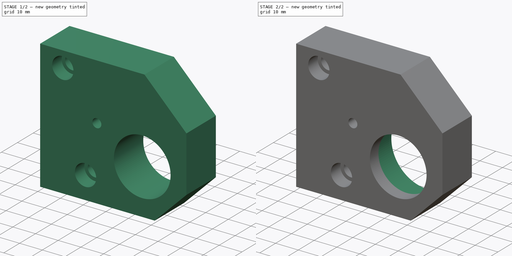
[diagram: build sequence overview — one tinted view per stage of 2, left to right]
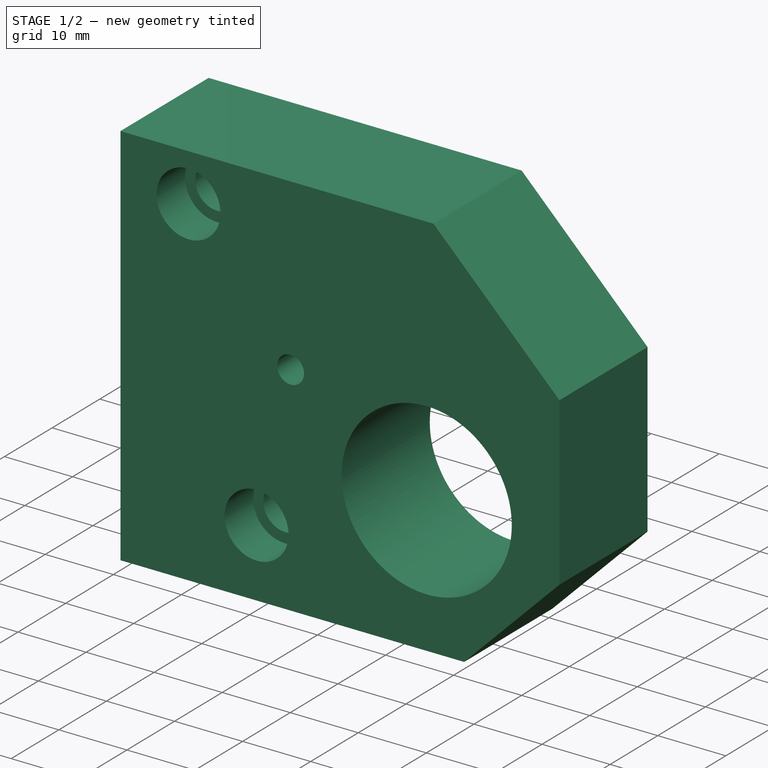
[diagram: stage 1 of 2 — iso view after this stage's code; geometry added in this stage tinted green]
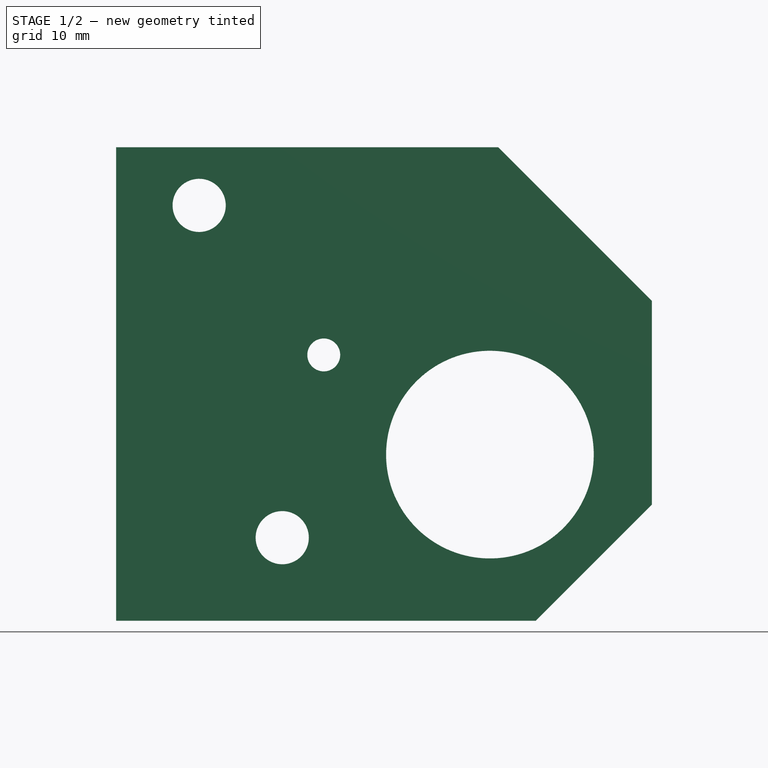
[diagram: stage 1 of 2 — front view after this stage's code; geometry added in this stage tinted green]
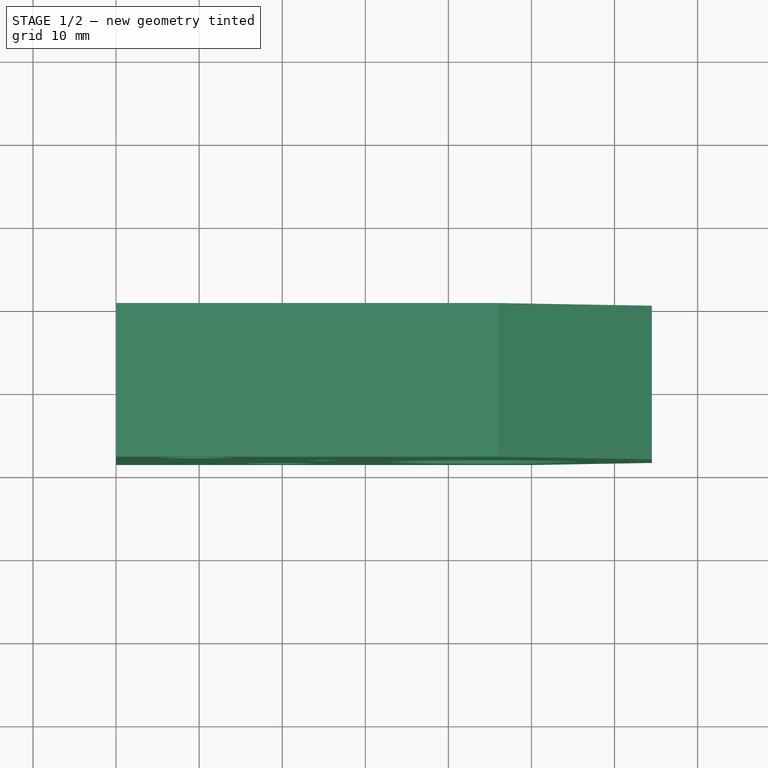
[diagram: stage 1 of 2 — top view after this stage's code; geometry added in this stage tinted green]
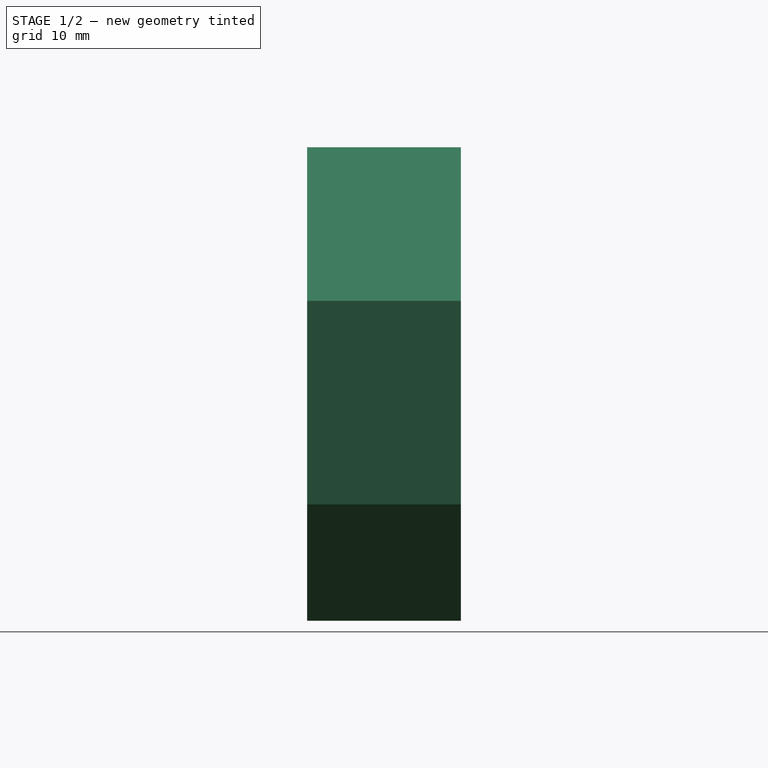
[diagram: stage 1 of 2 — right view after this stage's code; geometry added in this stage tinted green]
FCSTD DOCUMENT  (FreeCAD 0.16R5667 (Git))
Label: Worm-support-32
License: CreativeCommons Attribution-ShareAlike
LicenseURL: http://creativecommons.org/licenses/by-sa/4.0/
objects: Sketcher::SketchObject×4, PartDesign::Pocket×3, PartDesign::Pad×1
note: 12 computed .brp shape members not serialized (recipe doc carries the construction recipe); baked Part::Feature solids carry a one-line shape summary decoded from their .brp

FEATURE [Sketcher::SketchObject] Sketch
  Placement = pos=(0,0,0) rot=(-1,0,0;4.71239rad)
  sketch-geometry (10):
    g0: LineSegment StartX=0 StartY=0 StartZ=0 EndX=0 EndY=-57 EndZ=0
    g1: LineSegment StartX=0 StartY=-57 StartZ=0 EndX=50.5 EndY=-57 EndZ=0
    g2: LineSegment StartX=50.5 StartY=-57 StartZ=0 EndX=64.5 EndY=-43 EndZ=0
    g3: LineSegment StartX=64.5 StartY=-43 StartZ=0 EndX=64.5 EndY=-18.5 EndZ=0
    g4: LineSegment StartX=64.5 StartY=-18.5 StartZ=0 EndX=46 EndY=0 EndZ=0
    g5: LineSegment StartX=46 StartY=0 StartZ=0 EndX=0 EndY=0 EndZ=0
    g6: Circle CenterX=10 CenterY=-7 CenterZ=0 NormalX=0 NormalY=0 NormalZ=1 Radius=3.2
    g7: Circle CenterX=20 CenterY=-47 CenterZ=0 NormalX=0 NormalY=0 NormalZ=1 Radius=3.2
    g8: Circle CenterX=25 CenterY=-25 CenterZ=0 NormalX=0 NormalY=0 NormalZ=1 Radius=1.98
    g9: Circle CenterX=45 CenterY=-37 CenterZ=0 NormalX=0 NormalY=0 NormalZ=1 Radius=12.5
  constraints (29):
    c: Coincident(g0,g1)
    c: Coincident(g1,g2)
    c: Coincident(g2,g3)
    c: Coincident(g3,g4)
    c: Coincident(g4,g5)
    c: Coincident(g0,g5)
    c: Vertical(g0)
    c: Vertical(g3)
    c: Horizontal(g5)
    c: Horizontal(g1)
    c: Coincident(g0,g-1)
    c: DistanceY(g4,g1) = -57
    c: DistanceX(g-1,g3) = 64.5
    c: Angle(g4,g3) = 2.35619
    c: Angle(g3,g2) = 2.35619
    c: DistanceX(g-1,g4) = 46
    c: DistanceX(g1) = 50.5
    c: Equal(g7,g6)
    c: Radius(g7) = 3.2
    c: DistanceY(g-1,g6) = -7
    c: DistanceY(g-1,g7) = -47
    c: DistanceX(g-1,g7) = 20
    c: DistanceX(g-1,g6) = 10
    c: DistanceX(g-1,g8) = 25
    c: Radius(g8) = 1.98
    c: DistanceY(g-1,g8) = -25
    c: Radius(g9) = 12.5
    c: DistanceY(g-1,g9) = -37
    c: DistanceX(g-1,g9) = 45
FEATURE [PartDesign::Pad] Pad
  Length = 18.5
  Length2 = 100
  Placement = pos=(0,0,0) rot=(-1,0,0;4.71239rad)
  Sketch = -> Sketch
  Type = 0
FEATURE [Sketcher::SketchObject] Sketch001
  Placement = pos=(0,-18.5,0) rot=(1,0,0;1.5708rad)
  Support = -> Pad [Face12]
  sketch-geometry (2):
    g0: Circle CenterX=10 CenterY=-7 CenterZ=0 NormalX=0 NormalY=0 NormalZ=1 Radius=4.7
    g1: Circle CenterX=20 CenterY=-47 CenterZ=0 NormalX=0 NormalY=0 NormalZ=1 Radius=4.7
  constraints (6):
    c: Equal(g1,g0)
    c: DistanceY(g-1,g0) = -7
    c: DistanceY(g-1,g1) = -47
    c: DistanceX(g-1,g0) = 10
    c: DistanceX(g-1,g1) = 20
    c: Radius(g1) = 4.7
FEATURE [PartDesign::Pocket] Pocket
  Length = 6
  Placement = pos=(0,0,0) rot=(-1,0,0;4.71239rad)
  Sketch = -> Sketch001
  Type = 0
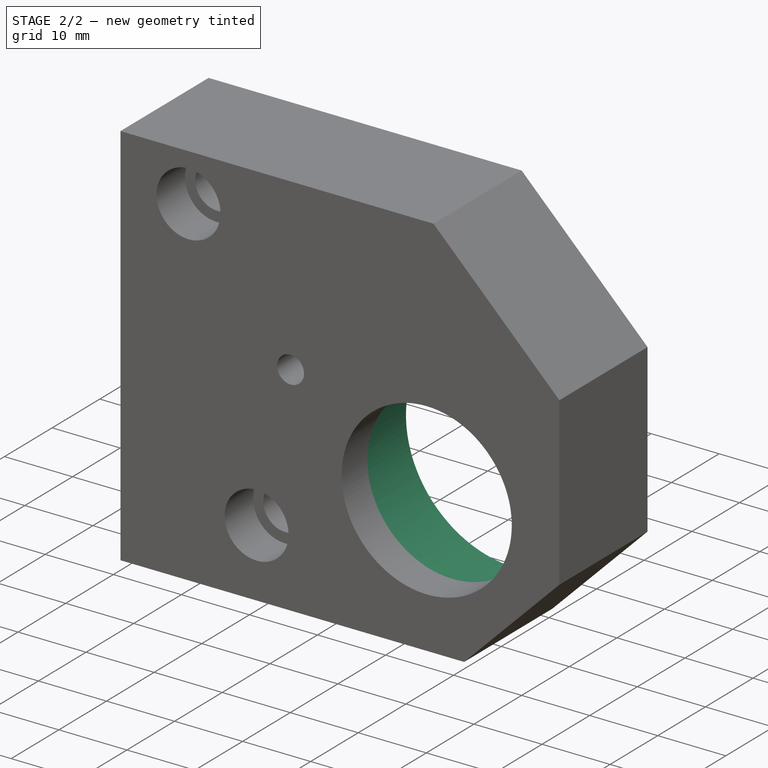
[diagram: stage 2 of 2 — iso view after this stage's code; geometry added in this stage tinted green]
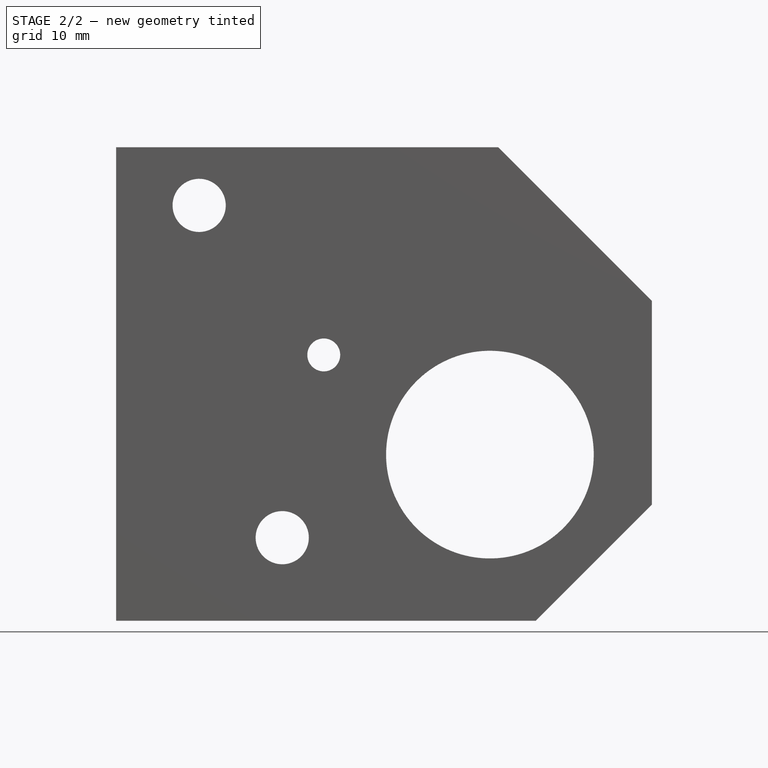
[diagram: stage 2 of 2 — front view after this stage's code; geometry added in this stage tinted green]
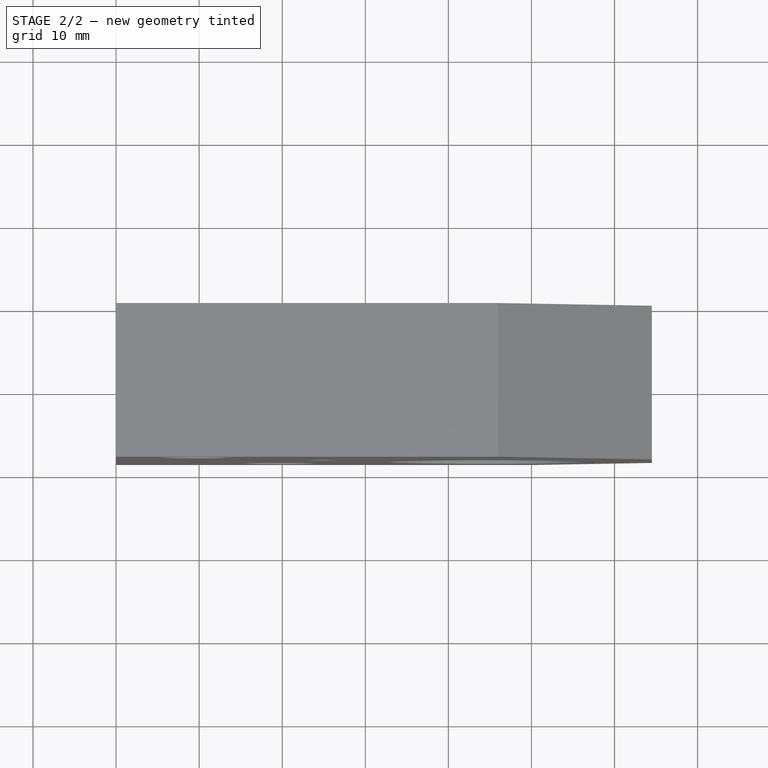
[diagram: stage 2 of 2 — top view after this stage's code; geometry added in this stage tinted green]
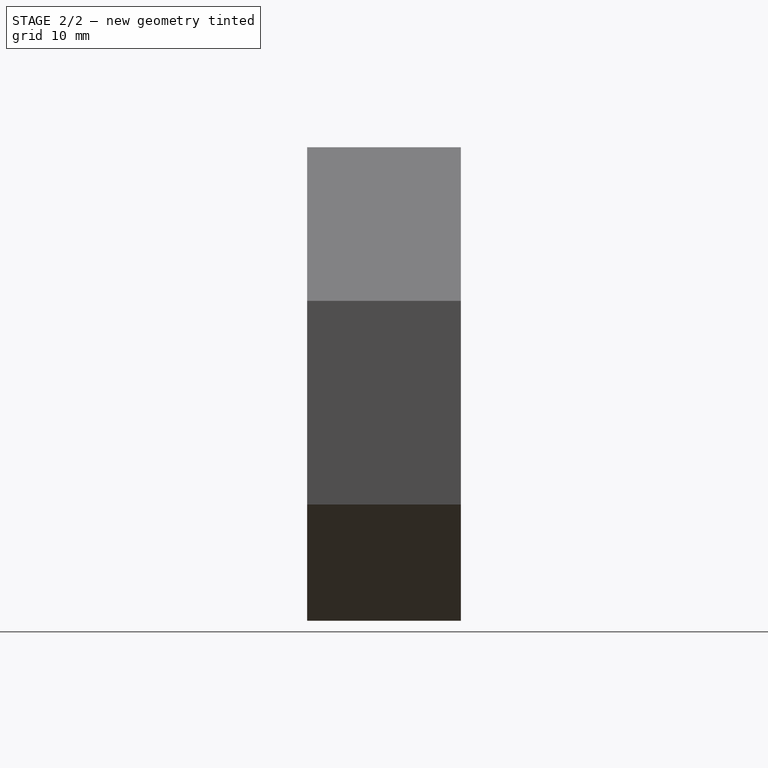
[diagram: stage 2 of 2 — right view after this stage's code; geometry added in this stage tinted green]
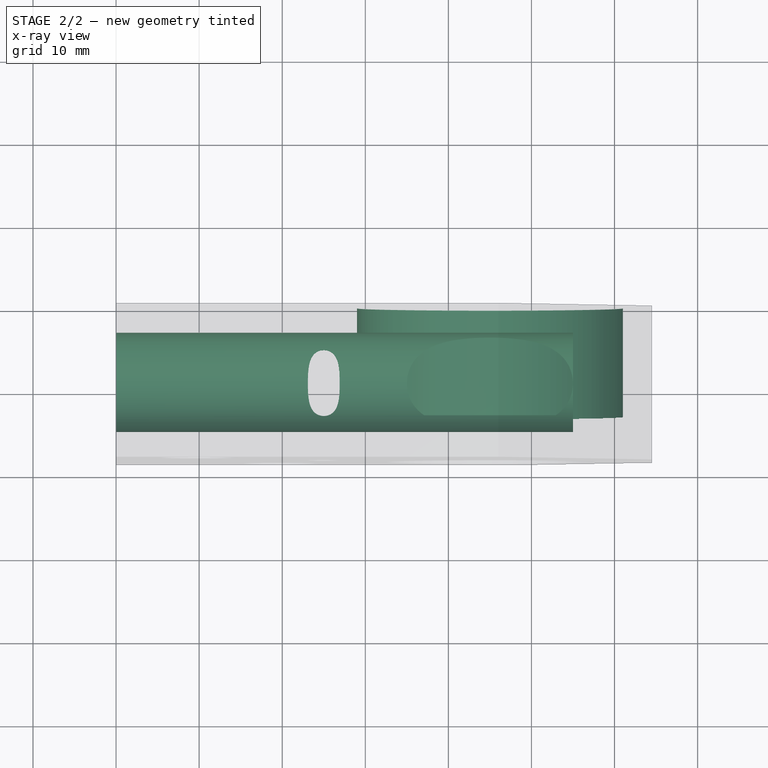
[diagram: stage 2 of 2 — x-ray composite at the top view; earlier geometry ghosted, this stage's added geometry solid]
FEATURE [Sketcher::SketchObject] Sketch002
  Placement = pos=(0,0,0) rot=(-1,0,0;1.5708rad)
  Support = -> Pocket [Face4]
  sketch-geometry (1):
    g0: Circle CenterX=45 CenterY=37 CenterZ=0 NormalX=0 NormalY=0 NormalZ=1 Radius=16
  constraints (3):
    c: Radius(g0) = 16
    c: DistanceX(g-1,g0) = 45
    c: DistanceY(g-1,g0) = 37
FEATURE [PartDesign::Pocket] Pocket001
  Length = 13.1
  Placement = pos=(0,0,0) rot=(-1,0,0;4.71239rad)
  Sketch = -> Sketch002
  Type = 0
FEATURE [Sketcher::SketchObject] Sketch003
  Placement = pos=(0,0,0) rot=(0.707107,0,-0.707107;3.14159rad)
  Support = -> Pocket001 [Face1]
  sketch-geometry (1):
    g0: Circle CenterX=18.5 CenterY=9.25 CenterZ=0 NormalX=0 NormalY=0 NormalZ=1 Radius=6
  constraints (3):
    c: DistanceY(g-1,g0) = 9.25
    c: DistanceX(g-1,g0) = 18.5
    c: Radius(g0) = 6
FEATURE [PartDesign::Pocket] Pocket002
  Length = 55
  Placement = pos=(0,0,0) rot=(-1,0,0;4.71239rad)
  Sketch = -> Sketch003
  Type = 0
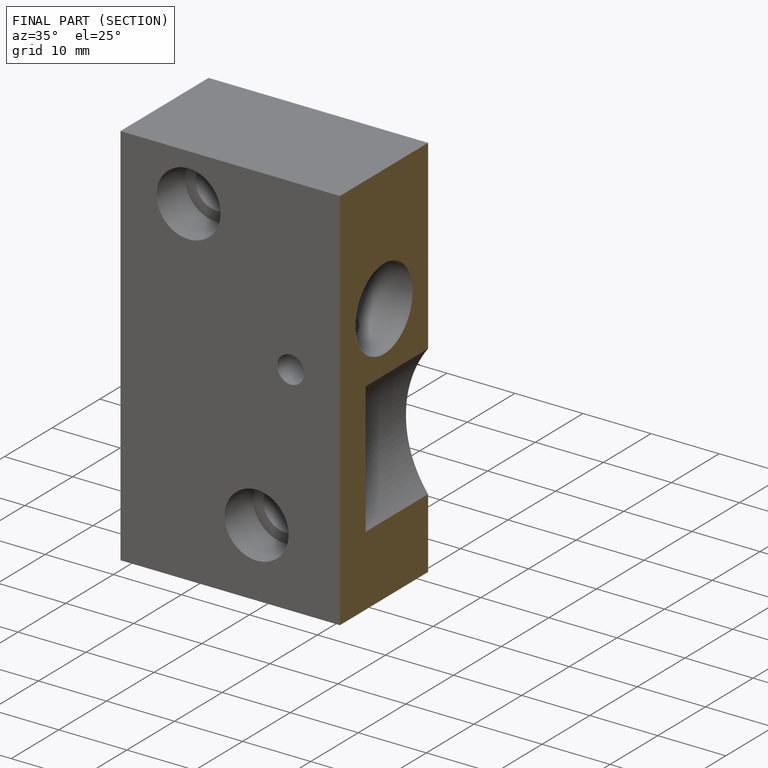
[diagram: finished part — half-section view (interior)]
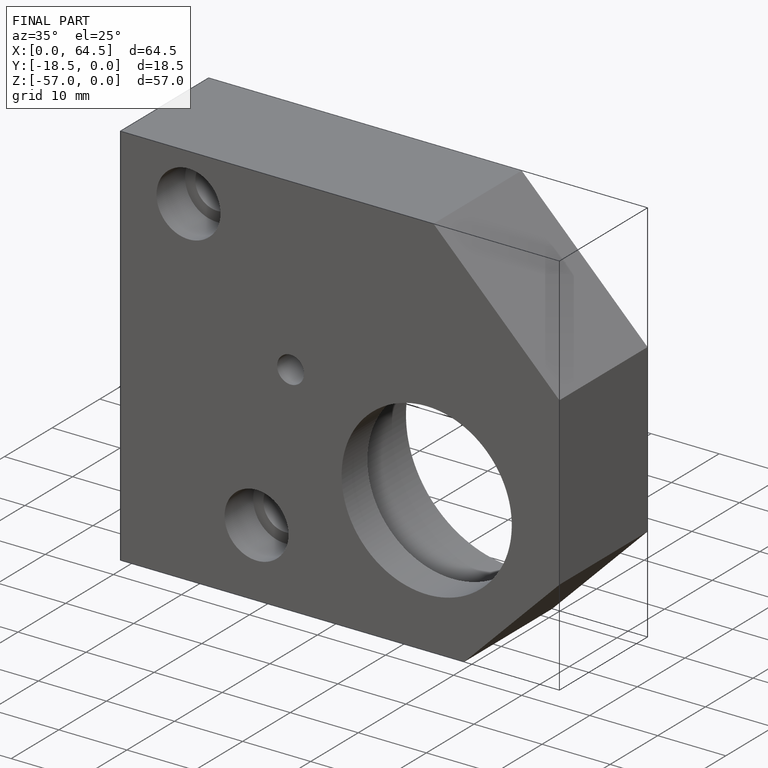
[diagram: finished part — iso view with bounding-box wireframe]
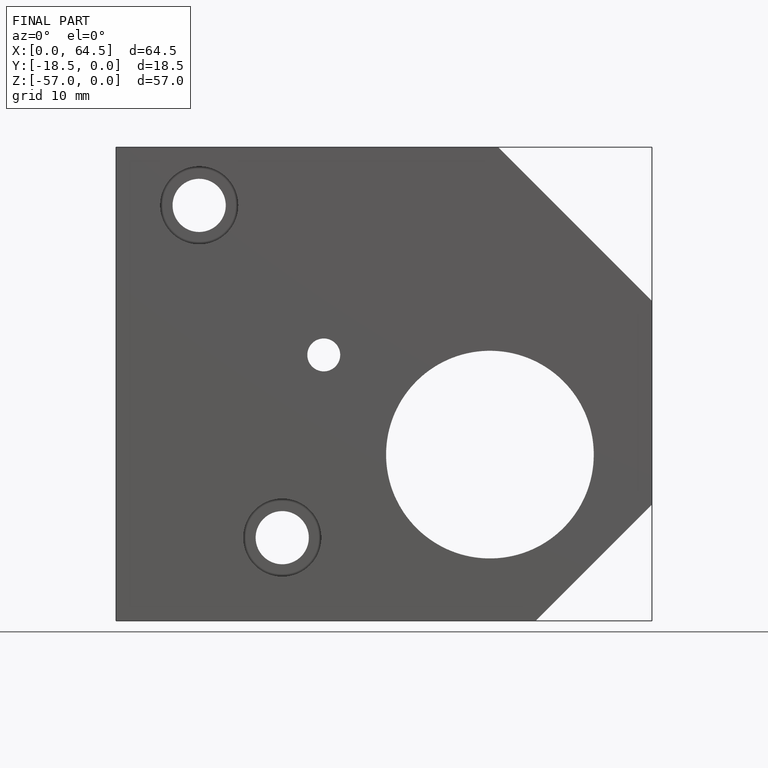
[diagram: finished part — front view with bounding-box wireframe]
